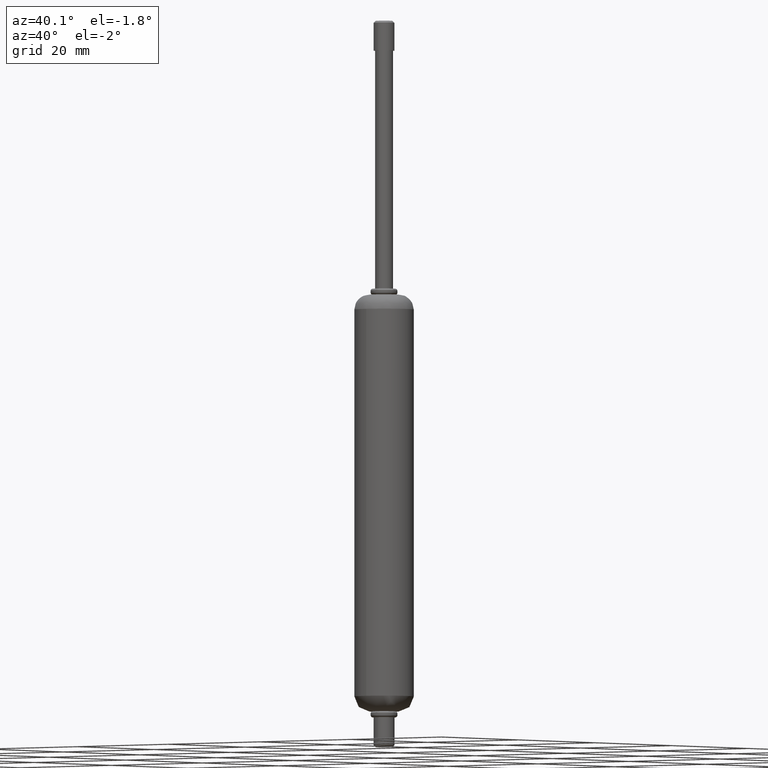
[diagram: clean part render]
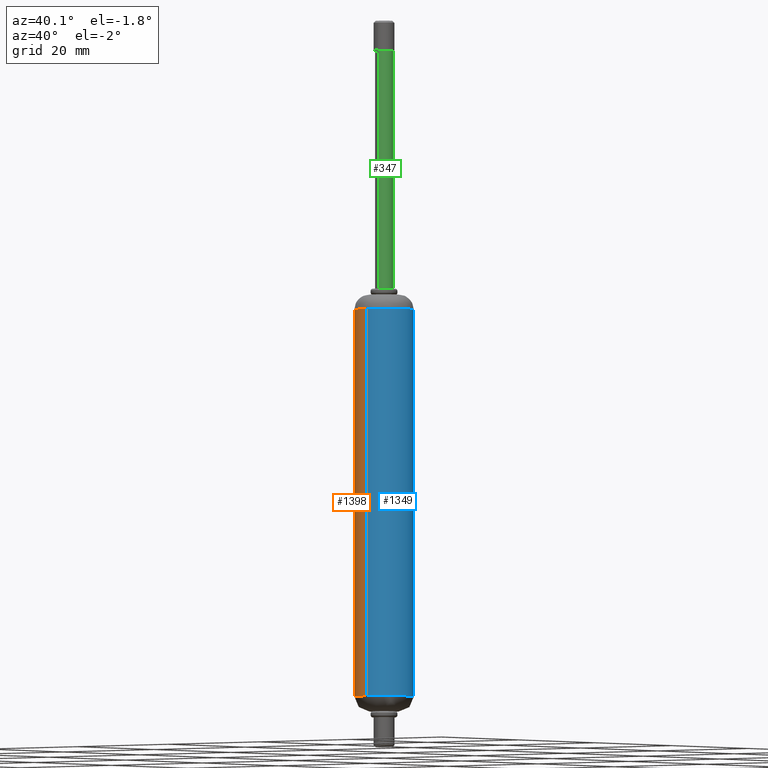
[diagram: same view with three faces highlighted in distinct colors, each labeled with its STEP entity id]
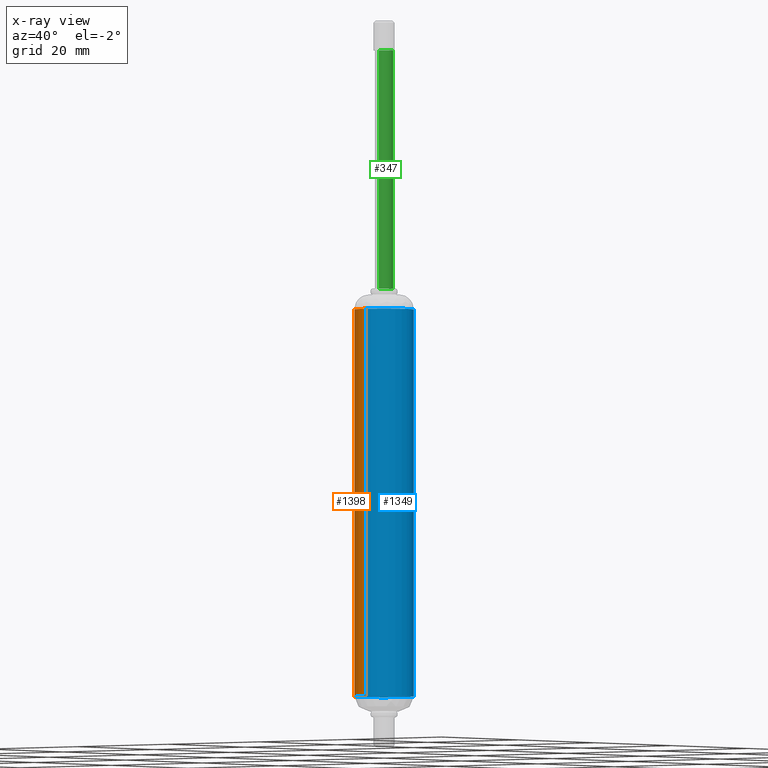
[diagram: x-ray of the same camera — body ghosted, the three highlighted faces saturated]
A machine part, auxiliary view with three faces highlighted in distinct colors.
The next image is the same camera in x-ray (body ghosted, the three faces saturated) — at least one of them is partly hidden behind the body in this view.
Their STEP definitions:

[orange] entity #1398 — the highlighted face is a freeform B-spline surface patch.
#1209=CARTESIAN_POINT('',(-4.680717893870416,-1.758089871990479,-67.500000000000000));
#1210=VERTEX_POINT('',#1209);
#1226=CARTESIAN_POINT('',(-4.680717893870430,-1.758089871990486,-2.499999999999997));
#1227=VERTEX_POINT('',#1226);
#1228=CARTESIAN_POINT('',(-4.680717893870430,-1.758089871990486,-2.499999999999997));
#1229=CARTESIAN_POINT('',(-4.680717893870416,-1.758089871990479,-67.500000000000000));
#1230=QUASI_UNIFORM_CURVE('',1,(#1228,#1229),.UNSPECIFIED.,.F.,.U.);
#1231=EDGE_CURVE('',#1227,#1210,#1230,.T.);
#1280=CARTESIAN_POINT('',(0.305242697969079,-4.990673992090930,-2.499999999999997));
#1281=VERTEX_POINT('',#1280);
#1295=CARTESIAN_POINT('',(0.305242697969078,-4.990673992090914,-67.500000000000000));
#1296=VERTEX_POINT('',#1295);
#1297=CARTESIAN_POINT('',(0.305242697969079,-4.990673992090930,-2.499999999999997));
#1298=CARTESIAN_POINT('',(0.305242697969078,-4.990673992090914,-67.500000000000000));
#1299=QUASI_UNIFORM_CURVE('',1,(#1297,#1298),.UNSPECIFIED.,.F.,.U.);
#1300=EDGE_CURVE('',#1281,#1296,#1299,.T.);
#1350=CARTESIAN_POINT('',(0.305242697674450,-4.990673992108945,-0.874999999999982));
#1351=CARTESIAN_POINT('',(-3.381847909014874,-5.216186114346300,-0.874999999999982));
#1352=CARTESIAN_POINT('',(-4.680717893882729,-1.758089871957721,-0.874999999999982));
#1353=CARTESIAN_POINT('',(0.305242697674450,-4.990673992108945,-69.165625000000674));
#1354=CARTESIAN_POINT('',(-3.381847909014874,-5.216186114346300,-69.165625000000674));
#1355=CARTESIAN_POINT('',(-4.680717893882729,-1.758089871957721,-69.165625000000674));
#1363=(BOUNDED_SURFACE()B_SPLINE_SURFACE(2,1,((#1350,#1353),(#1351,#1354),(#1352,#1355)),.UNSPECIFIED.,.F.,.F.,.U.)B_SPLINE_SURFACE_WITH_KNOTS((3,3),(2,2),(0.0,6.582243619432718),(0.0,68.290625000000702),.UNSPECIFIED.)GEOMETRIC_REPRESENTATION_ITEM()RATIONAL_B_SPLINE_SURFACE(((1.0,1.0),(0.765685424949238,0.765685424949238),(0.906274169979695,0.906274169979695)))REPRESENTATION_ITEM('')SURFACE());
#1364=CARTESIAN_POINT('',(0.305242697969078,-4.990673992090914,-67.500000000000000));
#1365=CARTESIAN_POINT('',(0.152763816788577,-4.999999999999590,-67.500000000000000));
#1366=CARTESIAN_POINT('',(1.918465E-013,-4.999999999999590,-67.500000000000000));
#1367=CARTESIAN_POINT('',(-3.463047978419818,-4.999999999999589,-67.500000000000014));
#1368=CARTESIAN_POINT('',(-4.680717893870416,-1.758089871990479,-67.500000000000000));
#1376=(BOUNDED_CURVE()B_SPLINE_CURVE(2,(#1364,#1365,#1366,#1367,#1368),.UNSPECIFIED.,.F.,.U.)B_SPLINE_CURVE_WITH_KNOTS((3,2,3),(0.739332962221596,0.750000000000000,0.940284170896697),.UNSPECIFIED.)CURVE()GEOMETRIC_REPRESENTATION_ITEM()RATIONAL_B_SPLINE_CURVE((0.976072041629539,0.987502787879514,1.0,0.777068226787269,0.893499554633059))REPRESENTATION_ITEM(''));
#1377=EDGE_CURVE('',#1296,#1210,#1376,.T.);
#1378=ORIENTED_EDGE('',*,*,#1377,.F.);
#1379=ORIENTED_EDGE('',*,*,#1300,.F.);
#1380=CARTESIAN_POINT('',(0.305242697969079,-4.990673992090930,-2.499999999999997));
#1381=CARTESIAN_POINT('',(0.152763816788578,-4.999999999999620,-2.500000000000000));
#1382=CARTESIAN_POINT('',(1.918465E-013,-4.999999999999620,-2.500000000000000));
#1383=CARTESIAN_POINT('',(-3.463047978419839,-4.999999999999620,-2.500000000000000));
#1384=CARTESIAN_POINT('',(-4.680717893870430,-1.758089871990485,-2.499999999999997));
#1392=(BOUNDED_CURVE()B_SPLINE_CURVE(2,(#1380,#1381,#1382,#1383,#1384),.UNSPECIFIED.,.F.,.U.)B_SPLINE_CURVE_WITH_KNOTS((3,2,3),(0.739332962221596,0.750000000000000,0.940284170896697),.UNSPECIFIED.)CURVE()GEOMETRIC_REPRESENTATION_ITEM()RATIONAL_B_SPLINE_CURVE((0.976072041629539,0.987502787879514,1.0,0.777068226787269,0.893499554633059))REPRESENTATION_ITEM(''));
#1393=EDGE_CURVE('',#1281,#1227,#1392,.T.);
#1394=ORIENTED_EDGE('',*,*,#1393,.T.);
#1395=ORIENTED_EDGE('',*,*,#1231,.T.);
#1396=EDGE_LOOP('',(#1378,#1379,#1394,#1395));
#1397=FACE_OUTER_BOUND('',#1396,.T.);
#1398=ADVANCED_FACE('',(#1397),#1363,.T.);

[blue] entity #1349 — the highlighted face is a freeform B-spline surface patch.
#1183=CARTESIAN_POINT('',(-4.680717893882729,-1.758089871957721,-0.874999999999982));
#1184=CARTESIAN_POINT('',(-4.944820096825175,-1.054947258576956,-0.874999999999982));
#1185=CARTESIAN_POINT('',(-4.990673992108753,-0.305242697674258,-0.874999999999982));
#1186=CARTESIAN_POINT('',(-5.295916689783011,4.685431294434686,-0.874999999999982));
#1187=CARTESIAN_POINT('',(-0.305242697674066,4.990673992108945,-0.874999999999982));
#1188=CARTESIAN_POINT('',(4.685431294434879,5.295916689783204,-0.874999999999982));
#1189=CARTESIAN_POINT('',(4.990673992109136,0.305242697674258,-0.874999999999982));
#1190=CARTESIAN_POINT('',(5.295916689783396,-4.685431294434686,-0.874999999999982));
#1191=CARTESIAN_POINT('',(0.305242697674450,-4.990673992108945,-0.874999999999982));
#1192=CARTESIAN_POINT('',(-4.680717893882729,-1.758089871957721,-69.165625000000674));
#1193=CARTESIAN_POINT('',(-4.944820096825175,-1.054947258576956,-69.165625000000674));
#1194=CARTESIAN_POINT('',(-4.990673992108753,-0.305242697674258,-69.165625000000674));
#1195=CARTESIAN_POINT('',(-5.295916689783011,4.685431294434686,-69.165625000000674));
#1196=CARTESIAN_POINT('',(-0.305242697674066,4.990673992108945,-69.165625000000674));
#1197=CARTESIAN_POINT('',(4.685431294434879,5.295916689783204,-69.165625000000674));
#1198=CARTESIAN_POINT('',(4.990673992109136,0.305242697674258,-69.165625000000674));
#1199=CARTESIAN_POINT('',(5.295916689783396,-4.685431294434686,-69.165625000000674));
#1200=CARTESIAN_POINT('',(0.305242697674450,-4.990673992108945,-69.165625000000674));
#1208=(BOUNDED_SURFACE()B_SPLINE_SURFACE(2,1,((#1183,#1192),(#1184,#1193),(#1185,#1194),(#1186,#1195),(#1187,#1196),(#1188,#1197),(#1189,#1198),(#1190,#1199),(#1191,#1200)),.UNSPECIFIED.,.F.,.F.,.U.)B_SPLINE_SURFACE_WITH_KNOTS((3,2,2,2,3),(2,2),(0.0,1.656854249492251,9.941125496953505,18.225396744414759,26.509667991876022),(0.0,68.290625000000702),.UNSPECIFIED.)GEOMETRIC_REPRESENTATION_ITEM()RATIONAL_B_SPLINE_SURFACE(((0.906274169979695,0.906274169979695),(0.941421356237309,0.941421356237309),(1.0,1.0),(0.707106781186548,0.707106781186548),(1.0,1.0),(0.707106781186548,0.707106781186548),(1.0,1.0),(0.707106781186548,0.707106781186548),(1.0,1.0)))REPRESENTATION_ITEM('')SURFACE());
#1209=CARTESIAN_POINT('',(-4.680717893870416,-1.758089871990479,-67.500000000000000));
#1210=VERTEX_POINT('',#1209);
#1211=CARTESIAN_POINT('',(-4.999999999999398,0.0,-67.500000000000000));
#1212=VERTEX_POINT('',#1211);
#1213=CARTESIAN_POINT('',(-4.680717893870416,-1.758089871990479,-67.500000000000000));
#1214=CARTESIAN_POINT('',(-4.999999999999398,-0.908036930369878,-67.500000000000000));
#1215=CARTESIAN_POINT('',(-4.999999999999398,0.0,-67.500000000000000));
#1223=(BOUNDED_CURVE()B_SPLINE_CURVE(2,(#1213,#1214,#1215),.UNSPECIFIED.,.F.,.U.)B_SPLINE_CURVE_WITH_KNOTS((3,3),(0.940284170896698,1.0),.UNSPECIFIED.)CURVE()GEOMETRIC_REPRESENTATION_ITEM()RATIONAL_B_SPLINE_CURVE((0.893499554633060,0.930038554399280,1.0))REPRESENTATION_ITEM(''));
#1224=EDGE_CURVE('',#1210,#1212,#1223,.T.);
#1225=ORIENTED_EDGE('',*,*,#1224,.F.);
#1226=CARTESIAN_POINT('',(-4.680717893870430,-1.758089871990486,-2.499999999999997));
#1227=VERTEX_POINT('',#1226);
#1228=CARTESIAN_POINT('',(-4.680717893870430,-1.758089871990486,-2.499999999999997));
#1229=CARTESIAN_POINT('',(-4.680717893870416,-1.758089871990479,-67.500000000000000));
#1230=QUASI_UNIFORM_CURVE('',1,(#1228,#1229),.UNSPECIFIED.,.F.,.U.);
#1231=EDGE_CURVE('',#1227,#1210,#1230,.T.);
#1232=ORIENTED_EDGE('',*,*,#1231,.F.);
#1233=CARTESIAN_POINT('',(-4.999999999999431,0.0,-2.500000000000000));
#1234=VERTEX_POINT('',#1233);
#1235=CARTESIAN_POINT('',(-4.680717893870430,-1.758089871990486,-2.499999999999997));
#1236=CARTESIAN_POINT('',(-4.999999999999429,-0.908036930369885,-2.500000000000000));
#1237=CARTESIAN_POINT('',(-4.999999999999429,0.0,-2.500000000000000));
#1245=(BOUNDED_CURVE()B_SPLINE_CURVE(2,(#1235,#1236,#1237),.UNSPECIFIED.,.F.,.U.)B_SPLINE_CURVE_WITH_KNOTS((3,3),(0.940284170896698,1.0),.UNSPECIFIED.)CURVE()GEOMETRIC_REPRESENTATION_ITEM()RATIONAL_B_SPLINE_CURVE((0.893499554633060,0.930038554399280,1.0))REPRESENTATION_ITEM(''));
#1246=EDGE_CURVE('',#1227,#1234,#1245,.T.);
#1247=ORIENTED_EDGE('',*,*,#1246,.T.);
#1248=CARTESIAN_POINT('',(-0.577321146855357,4.966558193899434,-2.500000000000139));
#1249=VERTEX_POINT('',#1248);
#1250=CARTESIAN_POINT('',(-4.999999999999429,0.0,-2.500000000000000));
#1251=CARTESIAN_POINT('',(-4.999999999999430,4.452458503736866,-2.500000000000000));
#1252=CARTESIAN_POINT('',(-0.577321146855357,4.966558193899435,-2.500000000000140));
#1260=(BOUNDED_CURVE()B_SPLINE_CURVE(2,(#1250,#1251,#1252),.UNSPECIFIED.,.F.,.U.)B_SPLINE_CURVE_WITH_KNOTS((3,3),(0.0,0.229999999984999),.UNSPECIFIED.)CURVE()GEOMETRIC_REPRESENTATION_ITEM()RATIONAL_B_SPLINE_CURVE((1.0,0.730538238709199,0.956886118161134))REPRESENTATION_ITEM(''));
#1261=EDGE_CURVE('',#1234,#1249,#1260,.T.);
#1262=ORIENTED_EDGE('',*,*,#1261,.T.);
#1263=CARTESIAN_POINT('',(4.999999999999812,0.0,-2.500000000000000));
#1264=VERTEX_POINT('',#1263);
#1265=CARTESIAN_POINT('',(-0.577321146855357,4.966558193899435,-2.500000000000140));
#1266=CARTESIAN_POINT('',(-0.289629145711622,4.999999999999620,-2.500000000000000));
#1267=CARTESIAN_POINT('',(1.918465E-013,4.999999999999620,-2.500000000000000));
#1268=CARTESIAN_POINT('',(4.999999999999812,4.999999999999621,-2.500000000000000));
#1269=CARTESIAN_POINT('',(4.999999999999812,0.0,-2.500000000000000));
#1277=(BOUNDED_CURVE()B_SPLINE_CURVE(2,(#1265,#1266,#1267,#1268,#1269),.UNSPECIFIED.,.F.,.U.)B_SPLINE_CURVE_WITH_KNOTS((3,2,3),(0.229999999984999,0.250000000000000,0.500000000000000),.UNSPECIFIED.)CURVE()GEOMETRIC_REPRESENTATION_ITEM()RATIONAL_B_SPLINE_CURVE((0.956886118161134,0.976568542477349,1.0,0.707106781186547,1.0))REPRESENTATION_ITEM(''));
#1278=EDGE_CURVE('',#1249,#1264,#1277,.T.);
#1279=ORIENTED_EDGE('',*,*,#1278,.T.);
#1280=CARTESIAN_POINT('',(0.305242697969079,-4.990673992090930,-2.499999999999997));
#1281=VERTEX_POINT('',#1280);
#1282=CARTESIAN_POINT('',(4.999999999999812,0.0,-2.500000000000000));
#1283=CARTESIAN_POINT('',(4.999999999999812,-4.703530333971701,-2.500000000000000));
#1284=CARTESIAN_POINT('',(0.305242697969079,-4.990673992090930,-2.499999999999997));
#1292=(BOUNDED_CURVE()B_SPLINE_CURVE(2,(#1282,#1283,#1284),.UNSPECIFIED.,.F.,.U.)B_SPLINE_CURVE_WITH_KNOTS((3,3),(0.500000000000000,0.739332962221595),.UNSPECIFIED.)CURVE()GEOMETRIC_REPRESENTATION_ITEM()RATIONAL_B_SPLINE_CURVE((1.0,0.719603993307035,0.976072041629537))REPRESENTATION_ITEM(''));
#1293=EDGE_CURVE('',#1264,#1281,#1292,.T.);
#1294=ORIENTED_EDGE('',*,*,#1293,.T.);
#1295=CARTESIAN_POINT('',(0.305242697969078,-4.990673992090914,-67.500000000000000));
#1296=VERTEX_POINT('',#1295);
#1297=CARTESIAN_POINT('',(0.305242697969079,-4.990673992090930,-2.499999999999997));
#1298=CARTESIAN_POINT('',(0.305242697969078,-4.990673992090914,-67.500000000000000));
#1299=QUASI_UNIFORM_CURVE('',1,(#1297,#1298),.UNSPECIFIED.,.F.,.U.);
#1300=EDGE_CURVE('',#1281,#1296,#1299,.T.);
#1301=ORIENTED_EDGE('',*,*,#1300,.T.);
#1302=CARTESIAN_POINT('',(4.999999999999782,0.0,-67.500000000000000));
#1303=VERTEX_POINT('',#1302);
#1304=CARTESIAN_POINT('',(4.999999999999782,0.0,-67.500000000000000));
#1305=CARTESIAN_POINT('',(4.999999999999782,-4.703530333971672,-67.499999999999986));
#1306=CARTESIAN_POINT('',(0.305242697969078,-4.990673992090914,-67.500000000000000));
#1314=(BOUNDED_CURVE()B_SPLINE_CURVE(2,(#1304,#1305,#1306),.UNSPECIFIED.,.F.,.U.)B_SPLINE_CURVE_WITH_KNOTS((3,3),(0.500000000000000,0.739332962221595),.UNSPECIFIED.)CURVE()GEOMETRIC_REPRESENTATION_ITEM()RATIONAL_B_SPLINE_CURVE((1.0,0.719603993307035,0.976072041629537))REPRESENTATION_ITEM(''));
#1315=EDGE_CURVE('',#1303,#1296,#1314,.T.);
#1316=ORIENTED_EDGE('',*,*,#1315,.F.);
#1317=CARTESIAN_POINT('',(-0.577321146855354,4.966558193899402,-67.500000000000654));
#1318=VERTEX_POINT('',#1317);
#1319=CARTESIAN_POINT('',(-0.577321146855354,4.966558193899402,-67.500000000000654));
#1320=CARTESIAN_POINT('',(-0.289629145711620,4.999999999999590,-67.500000000000000));
#1321=CARTESIAN_POINT('',(1.918465E-013,4.999999999999590,-67.500000000000000));
#1322=CARTESIAN_POINT('',(4.999999999999782,4.999999999999591,-67.500000000000000));
#1323=CARTESIAN_POINT('',(4.999999999999782,0.0,-67.500000000000000));
#1331=(BOUNDED_CURVE()B_SPLINE_CURVE(2,(#1319,#1320,#1321,#1322,#1323),.UNSPECIFIED.,.F.,.U.)B_SPLINE_CURVE_WITH_KNOTS((3,2,3),(0.229999999984999,0.250000000000000,0.500000000000000),.UNSPECIFIED.)CURVE()GEOMETRIC_REPRESENTATION_ITEM()RATIONAL_B_SPLINE_CURVE((0.956886118161134,0.976568542477349,1.0,0.707106781186548,1.0))REPRESENTATION_ITEM(''));
#1332=EDGE_CURVE('',#1318,#1303,#1331,.T.);
#1333=ORIENTED_EDGE('',*,*,#1332,.F.);
#1334=CARTESIAN_POINT('',(-4.999999999999398,0.0,-67.500000000000000));
#1335=CARTESIAN_POINT('',(-4.999999999999398,4.452458503736836,-67.499999999999986));
#1336=CARTESIAN_POINT('',(-0.577321146855354,4.966558193899402,-67.500000000000654));
#1344=(BOUNDED_CURVE()B_SPLINE_CURVE(2,(#1334,#1335,#1336),.UNSPECIFIED.,.F.,.U.)B_SPLINE_CURVE_WITH_KNOTS((3,3),(0.0,0.229999999984999),.UNSPECIFIED.)CURVE()GEOMETRIC_REPRESENTATION_ITEM()RATIONAL_B_SPLINE_CURVE((1.0,0.730538238709199,0.956886118161134))REPRESENTATION_ITEM(''));
#1345=EDGE_CURVE('',#1212,#1318,#1344,.T.);
#1346=ORIENTED_EDGE('',*,*,#1345,.F.);
#1347=EDGE_LOOP('',(#1225,#1232,#1247,#1262,#1279,#1294,#1301,#1316,#1333,#1346));
#1348=FACE_OUTER_BOUND('',#1347,.T.);
#1349=ADVANCED_FACE('',(#1348),#1208,.T.);

[green] entity #347 — the highlighted face is a freeform B-spline surface patch.
#245=CARTESIAN_POINT('',(-0.177051351984902,1.489514289545126,42.000000000000021));
#246=CARTESIAN_POINT('',(-0.134422092956741,1.494581423172534,42.000000000000014));
#247=CARTESIAN_POINT('',(-0.091572809302071,1.497202197632425,42.000000000000007));
#248=CARTESIAN_POINT('',(1.405629388330354,1.588775006934688,42.000000000000007));
#249=CARTESIAN_POINT('',(1.497202197632616,0.091572809302263,42.000000000000007));
#250=CARTESIAN_POINT('',(1.588775006934879,-1.405629388330162,42.000000000000007));
#251=CARTESIAN_POINT('',(0.091572809302454,-1.497202197632425,42.000000000000007));
#252=CARTESIAN_POINT('',(-0.177051351984902,1.489514289545126,-0.024999999999999));
#253=CARTESIAN_POINT('',(-0.134422092956741,1.494581423172534,-0.024999999999999));
#254=CARTESIAN_POINT('',(-0.091572809302071,1.497202197632425,-0.024999999999999));
#255=CARTESIAN_POINT('',(1.405629388330354,1.588775006934688,-0.024999999999999));
#256=CARTESIAN_POINT('',(1.497202197632616,0.091572809302263,-0.024999999999999));
#257=CARTESIAN_POINT('',(1.588775006934879,-1.405629388330162,-0.024999999999999));
#258=CARTESIAN_POINT('',(0.091572809302454,-1.497202197632425,-0.024999999999999));
#266=(BOUNDED_SURFACE()B_SPLINE_SURFACE(2,1,((#245,#252),(#246,#253),(#247,#254),(#248,#255),(#249,#256),(#250,#257),(#251,#258)),.UNSPECIFIED.,.F.,.F.,.U.)B_SPLINE_SURFACE_WITH_KNOTS((3,2,2,3),(2,2),(3.078760800517997,3.141592653589793,4.712388980384690,6.283185307179586),(0.0,42.025000000000020),.UNSPECIFIED.)GEOMETRIC_REPRESENTATION_ITEM()RATIONAL_B_SPLINE_SURFACE(((0.977505800795127,0.977505800795127),(0.988284271247462,0.988284271247462),(1.0,1.0),(0.707106781186548,0.707106781186548),(1.0,1.0),(0.707106781186548,0.707106781186548),(1.0,1.0)))REPRESENTATION_ITEM('')SURFACE());
#267=CARTESIAN_POINT('',(-0.177051352329437,1.489514289504173,41.0));
#268=VERTEX_POINT('',#267);
#269=CARTESIAN_POINT('',(1.499999999999816,0.0,41.0));
#270=VERTEX_POINT('',#269);
#271=CARTESIAN_POINT('',(-0.177051352329437,1.489514289504173,40.999999999999993));
#272=CARTESIAN_POINT('',(-0.088836179825829,1.499999999999624,40.999999999999993));
#273=CARTESIAN_POINT('',(1.918465E-013,1.499999999999624,41.0));
#274=CARTESIAN_POINT('',(1.499999999999816,1.499999999999625,41.0));
#275=CARTESIAN_POINT('',(1.499999999999816,0.0,41.0));
#283=(BOUNDED_CURVE()B_SPLINE_CURVE(2,(#271,#272,#273,#274,#275),.UNSPECIFIED.,.F.,.U.)B_SPLINE_CURVE_WITH_KNOTS((3,2,3),(0.229562473437461,0.250000000000000,0.500000000000000),.UNSPECIFIED.)CURVE()GEOMETRIC_REPRESENTATION_ITEM()RATIONAL_B_SPLINE_CURVE((0.956026754034643,0.976055948242050,1.0,0.707106781186548,1.0))REPRESENTATION_ITEM(''));
#284=EDGE_CURVE('',#268,#270,#283,.T.);
#285=ORIENTED_EDGE('',*,*,#284,.T.);
#286=CARTESIAN_POINT('',(0.091573057307112,-1.497202182463769,41.0));
#287=VERTEX_POINT('',#286);
#288=CARTESIAN_POINT('',(1.499999999999816,0.0,41.0));
#289=CARTESIAN_POINT('',(1.499999999999817,-1.411058632013794,41.000000000000014));
#290=CARTESIAN_POINT('',(0.091573057307112,-1.497202182463769,41.0));
#298=(BOUNDED_CURVE()B_SPLINE_CURVE(2,(#288,#289,#290),.UNSPECIFIED.,.F.,.U.)B_SPLINE_CURVE_WITH_KNOTS((3,3),(0.500000000000000,0.739332905078806),.UNSPECIFIED.)CURVE()GEOMETRIC_REPRESENTATION_ITEM()RATIONAL_B_SPLINE_CURVE((1.0,0.719604060253976,0.976071919161695))REPRESENTATION_ITEM(''));
#299=EDGE_CURVE('',#270,#287,#298,.T.);
#300=ORIENTED_EDGE('',*,*,#299,.T.);
#301=CARTESIAN_POINT('',(0.091573057307112,-1.497202182463769,0.999999999999999));
#302=VERTEX_POINT('',#301);
#303=CARTESIAN_POINT('',(0.091573057307112,-1.497202182463769,41.0));
#304=CARTESIAN_POINT('',(0.091573057307112,-1.497202182463769,0.999999999999999));
#305=QUASI_UNIFORM_CURVE('',1,(#303,#304),.UNSPECIFIED.,.F.,.U.);
#306=EDGE_CURVE('',#287,#302,#305,.T.);
#307=ORIENTED_EDGE('',*,*,#306,.T.);
#308=CARTESIAN_POINT('',(1.499999999999816,0.0,1.0));
#309=VERTEX_POINT('',#308);
#310=CARTESIAN_POINT('',(1.499999999999816,0.0,1.0));
#311=CARTESIAN_POINT('',(1.499999999999817,-1.411058632013794,1.0));
#312=CARTESIAN_POINT('',(0.091573057307112,-1.497202182463769,0.999999999999999));
#320=(BOUNDED_CURVE()B_SPLINE_CURVE(2,(#310,#311,#312),.UNSPECIFIED.,.F.,.U.)B_SPLINE_CURVE_WITH_KNOTS((3,3),(0.500000000000000,0.739332905078806),.UNSPECIFIED.)CURVE()GEOMETRIC_REPRESENTATION_ITEM()RATIONAL_B_SPLINE_CURVE((1.0,0.719604060253976,0.976071919161695))REPRESENTATION_ITEM(''));
#321=EDGE_CURVE('',#309,#302,#320,.T.);
#322=ORIENTED_EDGE('',*,*,#321,.F.);
#323=CARTESIAN_POINT('',(-0.177051352329437,1.489514289504173,0.999999999999999));
#324=VERTEX_POINT('',#323);
#325=CARTESIAN_POINT('',(-0.177051352329437,1.489514289504173,0.999999999999999));
#326=CARTESIAN_POINT('',(-0.088836179825829,1.499999999999624,1.0));
#327=CARTESIAN_POINT('',(1.918465E-013,1.499999999999624,1.0));
#328=CARTESIAN_POINT('',(1.499999999999816,1.499999999999625,1.0));
#329=CARTESIAN_POINT('',(1.499999999999816,0.0,1.0));
#337=(BOUNDED_CURVE()B_SPLINE_CURVE(2,(#325,#326,#327,#328,#329),.UNSPECIFIED.,.F.,.U.)B_SPLINE_CURVE_WITH_KNOTS((3,2,3),(0.229562473437461,0.250000000000000,0.500000000000000),.UNSPECIFIED.)CURVE()GEOMETRIC_REPRESENTATION_ITEM()RATIONAL_B_SPLINE_CURVE((0.956026754034643,0.976055948242050,1.0,0.707106781186548,1.0))REPRESENTATION_ITEM(''));
#338=EDGE_CURVE('',#324,#309,#337,.T.);
#339=ORIENTED_EDGE('',*,*,#338,.F.);
#340=CARTESIAN_POINT('',(-0.177051352329437,1.489514289504173,41.0));
#341=CARTESIAN_POINT('',(-0.177051352329437,1.489514289504173,0.999999999999999));
#342=QUASI_UNIFORM_CURVE('',1,(#340,#341),.UNSPECIFIED.,.F.,.U.);
#343=EDGE_CURVE('',#268,#324,#342,.T.);
#344=ORIENTED_EDGE('',*,*,#343,.F.);
#345=EDGE_LOOP('',(#285,#300,#307,#322,#339,#344));
#346=FACE_OUTER_BOUND('',#345,.T.);
#347=ADVANCED_FACE('',(#346),#266,.T.);